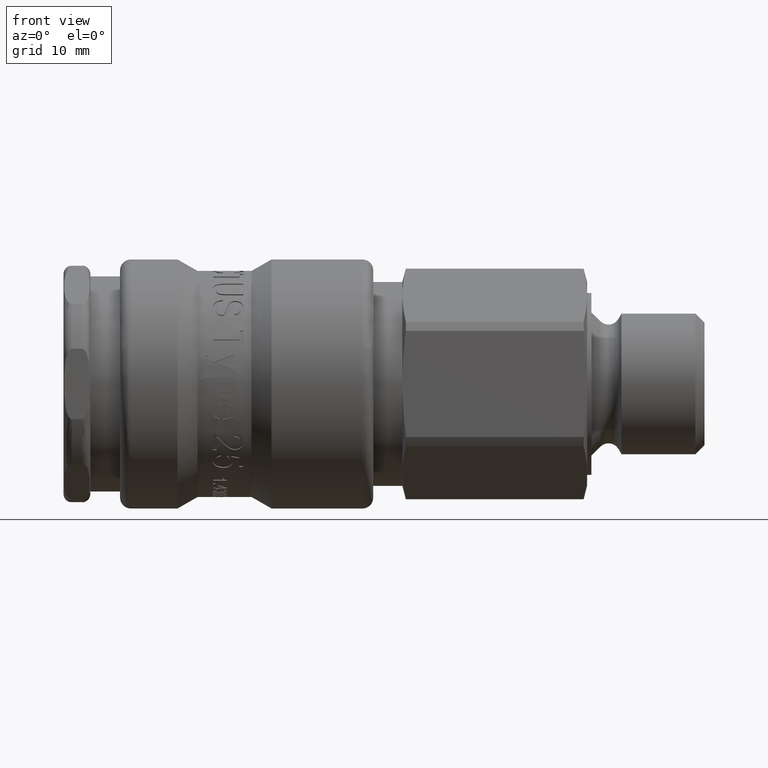
[diagram: clean part render]
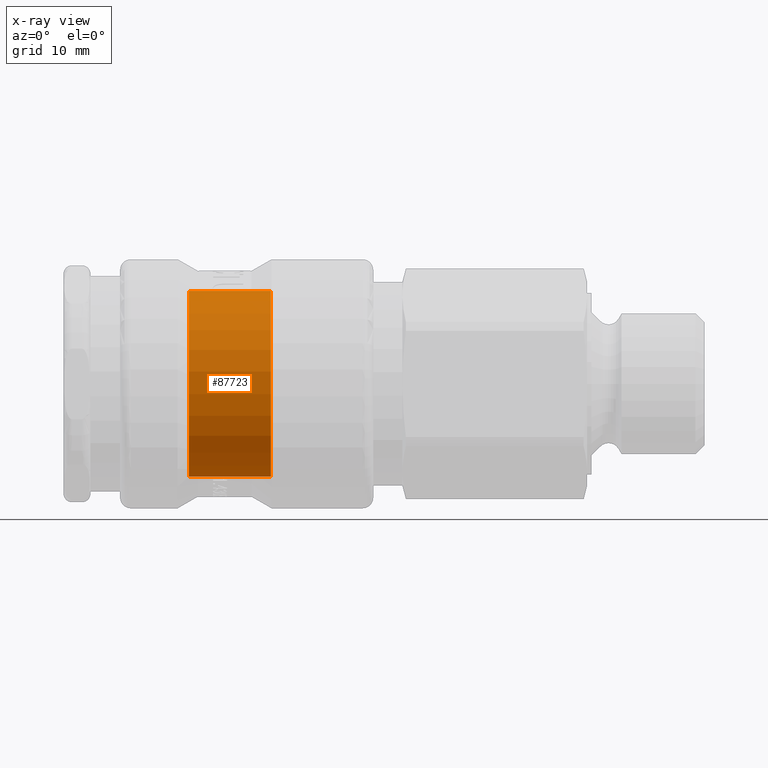
[diagram: x-ray — body ghosted, one internal face saturated and labeled with its STEP entity id]
A machine part, front view, then the same camera in x-ray: the body is ghosted and one INTERNAL B-rep face — a face not visible from any outside direction — is saturated and labeled: STEP entity #87723.
In plain terms, the highlighted cylindrical surface (bore or boss wall) has radius 8.625 mm, axis along (1, 0, 0).
Its self-contained STEP definition (entity closure, byte-faithful):
#87657=CARTESIAN_POINT('',(19.25,4.096264849680687,7.590206800955457));
#87658=VERTEX_POINT('',#87657);
#87659=CARTESIAN_POINT('',(19.25,0.0,0.0));
#87660=DIRECTION('',(1.0,0.0,0.0));
#87661=DIRECTION('',(0.0,0.474929257933993,0.880023976922372));
#87662=AXIS2_PLACEMENT_3D('',#87659,#87660,#87661);
#87663=CIRCLE('',#87662,8.625);
#87664=EDGE_CURVE('',#87658,#87658,#87663,.T.);
#87704=CARTESIAN_POINT('',(15.449999999999999,0.0,0.0));
#87705=DIRECTION('',(1.0,0.0,0.0));
#87706=DIRECTION('',(0.0,0.474929257933993,0.880023976922372));
#87707=AXIS2_PLACEMENT_3D('',#87704,#87705,#87706);
#87708=CYLINDRICAL_SURFACE('',#87707,8.625);
#87709=CARTESIAN_POINT('',(11.65,4.096264849680687,7.590206800955457));
#87710=VERTEX_POINT('',#87709);
#87711=CARTESIAN_POINT('',(11.65,0.0,0.0));
#87712=DIRECTION('',(1.0,0.0,0.0));
#87713=DIRECTION('',(0.0,0.474929257933993,0.880023976922372));
#87714=AXIS2_PLACEMENT_3D('',#87711,#87712,#87713);
#87715=CIRCLE('',#87714,8.625);
#87716=EDGE_CURVE('',#87710,#87710,#87715,.T.);
#87717=ORIENTED_EDGE('',*,*,#87716,.F.);
#87718=EDGE_LOOP('',(#87717));
#87719=FACE_OUTER_BOUND('',#87718,.T.);
#87720=ORIENTED_EDGE('',*,*,#87664,.T.);
#87721=EDGE_LOOP('',(#87720));
#87722=FACE_BOUND('',#87721,.T.);
#87723=ADVANCED_FACE('',(#87719,#87722),#87708,.F.);